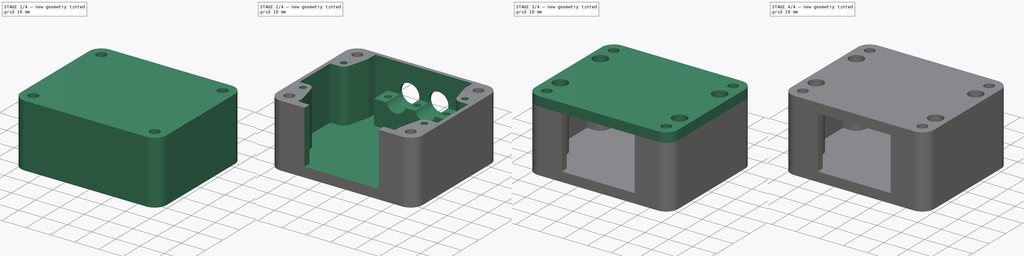
[diagram: build sequence overview — one tinted view per stage of 4, left to right]
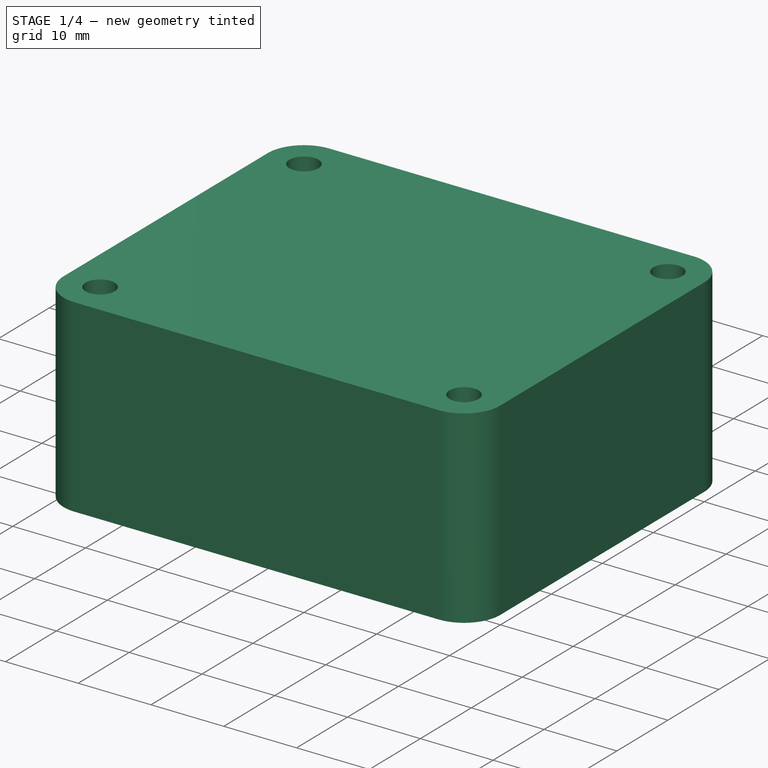
[diagram: stage 1 of 4 — iso view after this stage's code; geometry added in this stage tinted green]
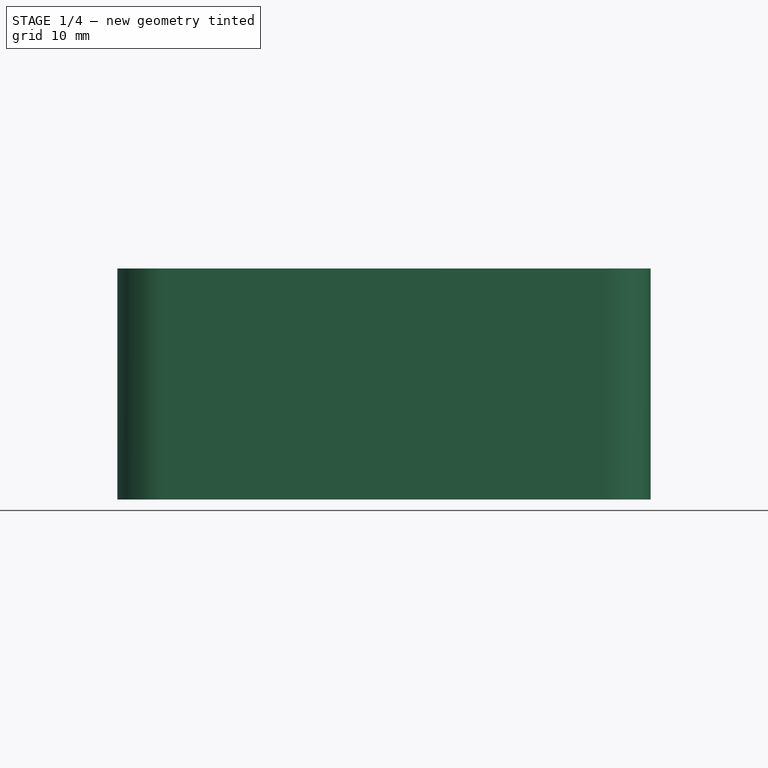
[diagram: stage 1 of 4 — front view after this stage's code; geometry added in this stage tinted green]
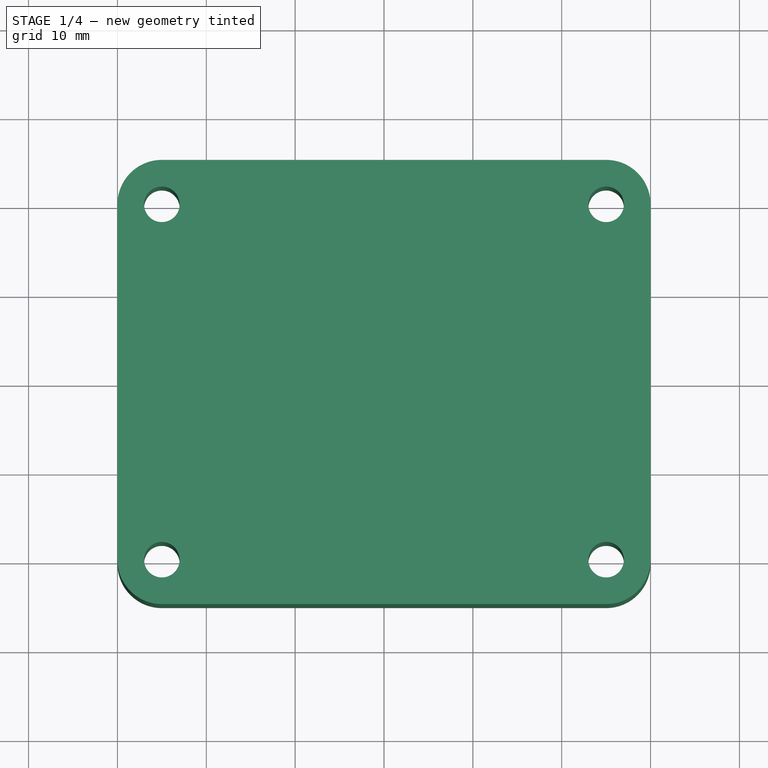
[diagram: stage 1 of 4 — top view after this stage's code; geometry added in this stage tinted green]
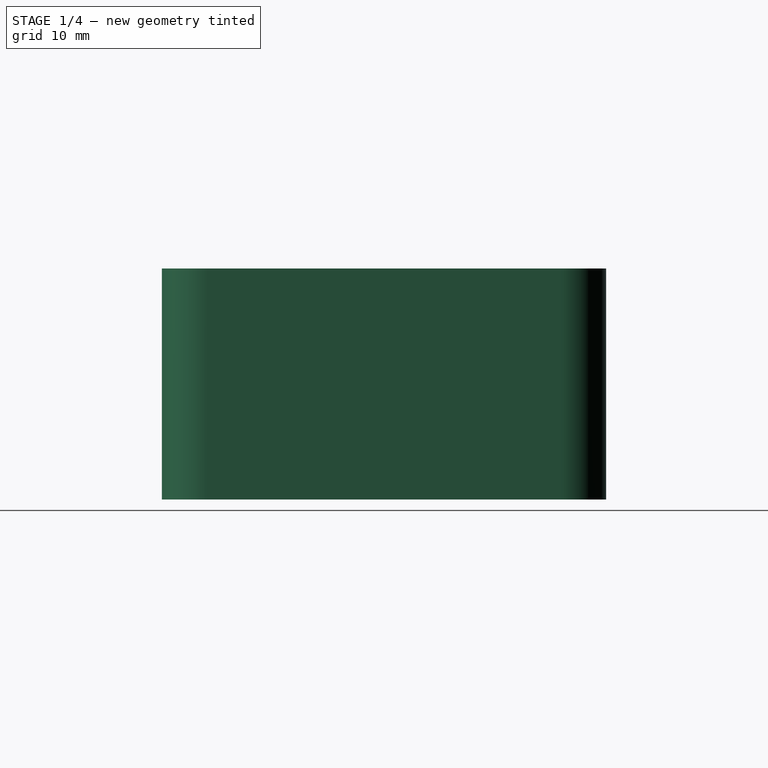
[diagram: stage 1 of 4 — right view after this stage's code; geometry added in this stage tinted green]
FCSTD DOCUMENT  (FreeCAD 0.16R4928 (Git))
Label: SwitchCover
License: All rights reserved
LicenseURL: http://en.wikipedia.org/wiki/All_rights_reserved
objects: Sketcher::SketchObject×9, PartDesign::Pocket×5, PartDesign::Pad×4, App::DocumentObjectGroup×3, PartDesign::Chamfer×1
note: 28 computed .brp shape members not serialized (recipe doc carries the construction recipe); baked Part::Feature solids carry a one-line shape summary decoded from their .brp

FEATURE [Sketcher::SketchObject] Sketch  label="1_BodyBase_Sketch"
  sketch-geometry (8):
    g0: LineSegment StartX=-25 StartY=25 StartZ=0 EndX=25 EndY=25 EndZ=0
    g1: LineSegment StartX=30 StartY=20 StartZ=0 EndX=30 EndY=-20 EndZ=0
    g2: LineSegment StartX=25 StartY=-25 StartZ=0 EndX=-25 EndY=-25 EndZ=0
    g3: LineSegment StartX=-30 StartY=-20 StartZ=0 EndX=-30 EndY=20 EndZ=0
    g4: ArcOfCircle CenterX=-25 CenterY=20 CenterZ=0 NormalX=0 NormalY=0 NormalZ=1 Radius=5 StartAngle=1.5708 EndAngle=3.14159
    g5: ArcOfCircle CenterX=25 CenterY=20 CenterZ=0 NormalX=0 NormalY=0 NormalZ=1 Radius=5 StartAngle=0 EndAngle=1.5708
    g6: ArcOfCircle CenterX=-25 CenterY=-20 CenterZ=0 NormalX=0 NormalY=0 NormalZ=1 Radius=5 StartAngle=3.14159 EndAngle=4.71239
    g7: ArcOfCircle CenterX=25 CenterY=-20 CenterZ=0 NormalX=0 NormalY=0 NormalZ=1 Radius=5 StartAngle=4.71239 EndAngle=6.28319
  constraints (20):
    c: Horizontal(g0)
    c: Horizontal(g2)
    c: Vertical(g1)
    c: Vertical(g3)
    c: Tangent(g0,g4) = 1.5708
    c: Tangent(g3,g4) = 1.5708
    c: Tangent(g0,g5) = 1.5708
    c: Tangent(g1,g5) = 1.5708
    c: Tangent(g3,g6) = 1.5708
    c: Tangent(g2,g6) = 1.5708
    c: Tangent(g2,g7) = 1.5708
    c: Tangent(g1,g7) = 1.5708
    c: Radius(g4) = 5
    c: Equal(g4,g5)
    c: Equal(g4,g7)
    c: Equal(g4,g6)
    c: Symmetric(g2,g2,g-2)
    c: Symmetric(g3,g3,g-1)
    c: DistanceY(g2,g0) = 50
    c: DistanceX(g3,g1) = 60
FEATURE [PartDesign::Pad] Pad  label="1_BodyBase_Pad"
  Length = 26
  Length2 = 100
  Sketch = -> Sketch
  Type = 0
FEATURE [Sketcher::SketchObject] Sketch001  label="2_MountingScrewHoles_Sketch"
  ExternalGeometry = -> [Pad]
  Placement = pos=(0,0,26) rot=(0,0,1;0rad)
  Support = -> Pad [Face10]
  sketch-geometry (4):
    g0: Circle CenterX=-25 CenterY=20 CenterZ=0 NormalX=0 NormalY=0 NormalZ=1 Radius=2
    g1: Circle CenterX=25 CenterY=20 CenterZ=0 NormalX=0 NormalY=0 NormalZ=1 Radius=2
    g2: Circle CenterX=-25 CenterY=-20 CenterZ=0 NormalX=0 NormalY=0 NormalZ=1 Radius=2
    g3: Circle CenterX=25 CenterY=-20 CenterZ=0 NormalX=0 NormalY=0 NormalZ=1 Radius=2
  constraints (8):
    c: Coincident(g0,g-3)
    c: Coincident(g1,g-4)
    c: Coincident(g2,g-5)
    c: Coincident(g3,g-6)
    c: Radius(g0) = 2
    c: Equal(g0,g1)
    c: Equal(g0,g2)
    c: Equal(g0,g3)
FEATURE [PartDesign::Pocket] Pocket  label="2_MountingScrewHoles_Pocket"
  Length = 5
  Sketch = -> Sketch001
  Type = 1
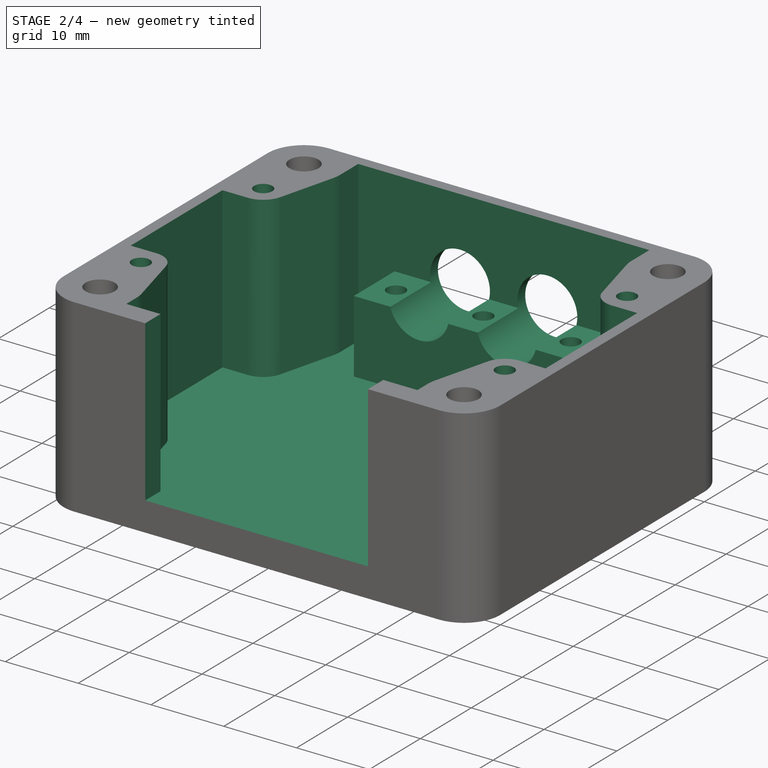
[diagram: stage 2 of 4 — iso view after this stage's code; geometry added in this stage tinted green]
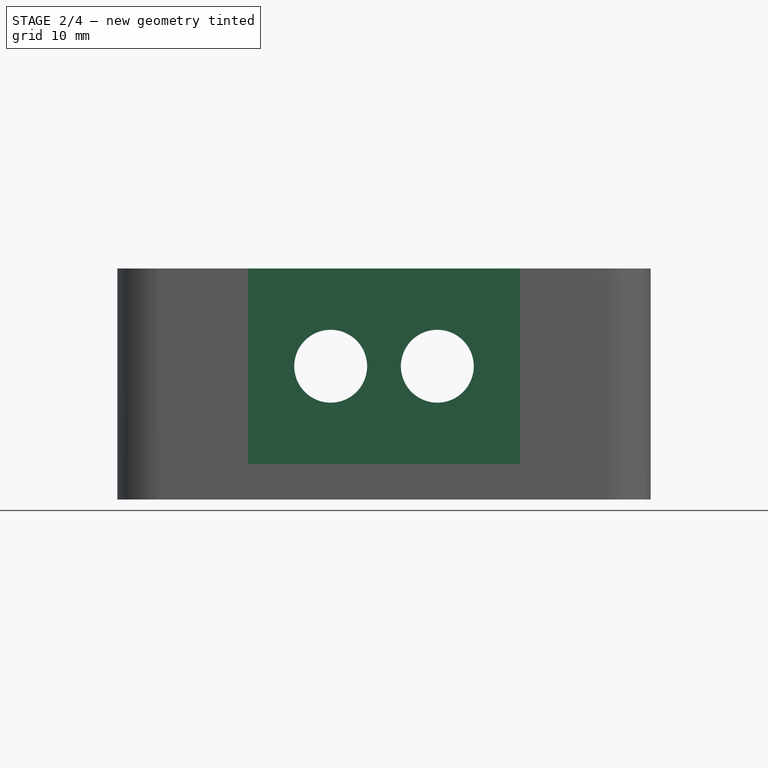
[diagram: stage 2 of 4 — front view after this stage's code; geometry added in this stage tinted green]
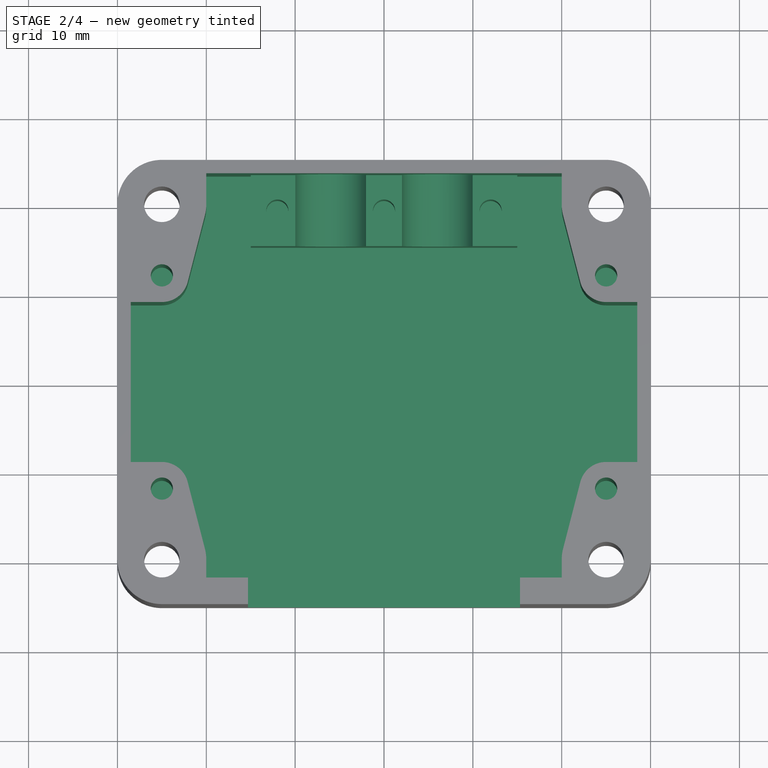
[diagram: stage 2 of 4 — top view after this stage's code; geometry added in this stage tinted green]
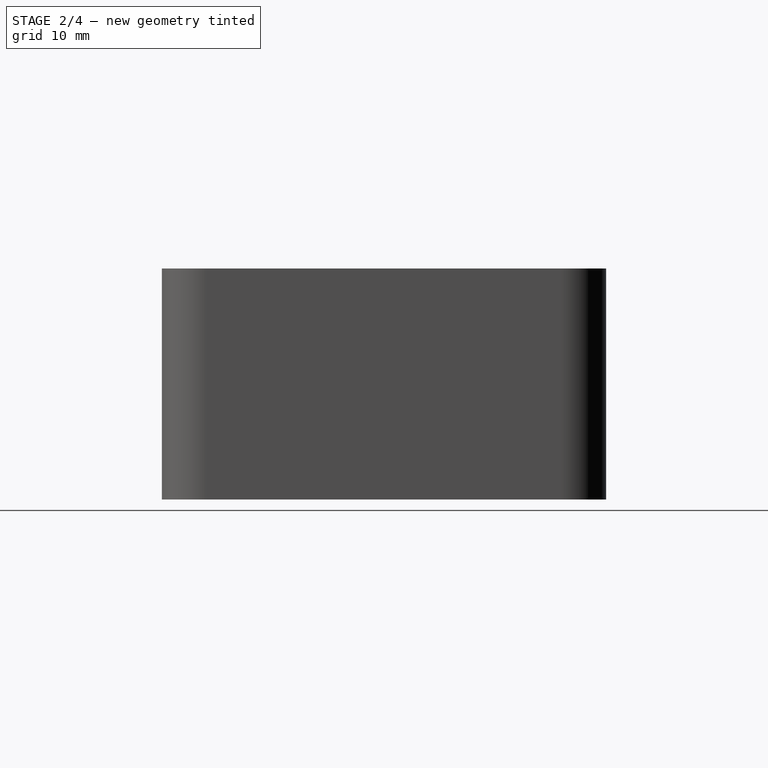
[diagram: stage 2 of 4 — right view after this stage's code; geometry added in this stage tinted green]
FEATURE [Sketcher::SketchObject] Sketch002  label="3_HollowInside_Sketch"
  ExternalGeometry = -> [Pocket]
  Placement = pos=(0,0,26) rot=(0,0,1;0rad)
  Support = -> Pocket [Face5]
  sketch-geometry (32):
    g0: ArcOfCircle CenterX=-25 CenterY=20 CenterZ=0 NormalX=0 NormalY=0 NormalZ=1 Radius=5 StartAngle=6.03051 EndAngle=6.28319
    g1: ArcOfCircle CenterX=25 CenterY=20 CenterZ=0 NormalX=0 NormalY=0 NormalZ=1 Radius=5 StartAngle=3.14159 EndAngle=3.39427
    g2: LineSegment StartX=-28.5 StartY=9 StartZ=0 EndX=-28.5 EndY=-9 EndZ=0
    g3: LineSegment StartX=-28.5 StartY=-9 StartZ=0 EndX=-25 EndY=-9 EndZ=0
    g4: LineSegment StartX=-20 StartY=20 StartZ=0 EndX=-20 EndY=23.5 EndZ=0
    g5: LineSegment StartX=-20 StartY=23.5 StartZ=0 EndX=20 EndY=23.5 EndZ=0
    g6: LineSegment StartX=20 StartY=23.5 StartZ=0 EndX=20 EndY=20 EndZ=0
    g7: LineSegment StartX=-20 StartY=-20 StartZ=0 EndX=-20 EndY=-22 EndZ=0
    g8: LineSegment StartX=-20 StartY=-22 StartZ=0 EndX=-15.3 EndY=-22 EndZ=0
    g9: LineSegment StartX=-15.3 StartY=-22 StartZ=0 EndX=-15.3 EndY=-26 EndZ=0
    g10: LineSegment StartX=-15.3 StartY=-26 StartZ=0 EndX=15.3 EndY=-26 EndZ=0
    g11: LineSegment StartX=15.3 StartY=-26 StartZ=0 EndX=15.3 EndY=-22 EndZ=0
    g12: LineSegment StartX=15.3 StartY=-22 StartZ=0 EndX=20 EndY=-22 EndZ=0
    g13: LineSegment StartX=20 StartY=-22 StartZ=0 EndX=20 EndY=-20 EndZ=0
    g14: LineSegment StartX=28.5 StartY=9 StartZ=0 EndX=28.5 EndY=-9 EndZ=0
    g15: LineSegment StartX=28.5 StartY=-9 StartZ=0 EndX=25 EndY=-9 EndZ=0
    g16: ArcOfCircle CenterX=-25 CenterY=12 CenterZ=0 NormalX=0 NormalY=0 NormalZ=1 Radius=3 StartAngle=4.71239 EndAngle=6.03051
    g17: LineSegment StartX=-28.5 StartY=9 StartZ=0 EndX=-25 EndY=9 EndZ=0
    g18: LineSegment StartX=-22.0953 StartY=11.25 StartZ=0 EndX=-20.1588 EndY=18.75 EndZ=0
    g19: Circle CenterX=-25 CenterY=12 CenterZ=0 NormalX=0 NormalY=0 NormalZ=1 Radius=1.25
    g20: LineSegment StartX=28.5 StartY=9 StartZ=0 EndX=25 EndY=9 EndZ=0
    g21: ArcOfCircle CenterX=25 CenterY=12 CenterZ=0 NormalX=0 NormalY=0 NormalZ=1 Radius=3 StartAngle=3.39427 EndAngle=4.71239
    g22: LineSegment StartX=22.0953 StartY=11.25 StartZ=0 EndX=20.1588 EndY=18.75 EndZ=0
    g23: Circle CenterX=25 CenterY=12 CenterZ=0 NormalX=0 NormalY=0 NormalZ=1 Radius=1.25
    g24: ArcOfCircle CenterX=-25 CenterY=-12 CenterZ=0 NormalX=0 NormalY=0 NormalZ=1 Radius=3 StartAngle=0.252682 EndAngle=1.57079
    g25: ArcOfCircle CenterX=-25 CenterY=-20 CenterZ=0 NormalX=0 NormalY=0 NormalZ=1 Radius=5 StartAngle=6.28319 EndAngle=6.53587
    g26: LineSegment StartX=-20.1588 StartY=-18.75 StartZ=0 EndX=-22.0953 EndY=-11.25 EndZ=0
    g27: Circle CenterX=-25 CenterY=-12 CenterZ=0 NormalX=0 NormalY=0 NormalZ=1 Radius=1.25
    g28: ArcOfCircle CenterX=25 CenterY=-20 CenterZ=0 NormalX=0 NormalY=0 NormalZ=1 Radius=5 StartAngle=2.88892 EndAngle=3.14159
    g29: ArcOfCircle CenterX=25 CenterY=-12 CenterZ=0 NormalX=0 NormalY=0 NormalZ=1 Radius=3 StartAngle=1.5708 EndAngle=2.88892
    g30: LineSegment StartX=20.1588 StartY=-18.75 StartZ=0 EndX=22.0953 EndY=-11.25 EndZ=0
    g31: Circle CenterX=25 CenterY=-12 CenterZ=0 NormalX=0 NormalY=0 NormalZ=1 Radius=1.25
  constraints (93):
    c: Coincident(g0,g-3)
    c: Coincident(g1,g-4)
    c: Coincident(g2,g3)
    c: Horizontal(g3)
    c: Vertical(g4)
    c: Coincident(g4,g5)
    c: Horizontal(g5)
    c: Coincident(g5,g6)
    c: Coincident(g6,g1)
    c: Vertical(g6)
    c: Coincident(g4,g0)
    c: Vertical(g7)
    c: Coincident(g7,g8)
    c: Horizontal(g8)
    c: Coincident(g8,g9)
    c: Vertical(g9)
    c: Coincident(g9,g10)
    c: Horizontal(g10)
    c: Coincident(g10,g11)
    c: Vertical(g11)
    c: Coincident(g11,g12)
    c: Horizontal(g12)
    c: Coincident(g12,g13)
    c: Vertical(g13)
    c: Vertical(g14)
    c: Coincident(g14,g15)
    c: Horizontal(g15)
    c: Radius(g0) = 5
    c: Equal(g0,g1)
    c: DistanceY(g-7,g7) = 3
    c: Symmetric(g8,g11,g-2)
    c: Tangent(g0,g4)
    c: Tangent(g1,g6)
    c: Symmetric(g2,g14,g-2)
    c: DistanceX(g14,g-8) = 1.5
    c: DistanceY(g4,g-9) = 1.5
    c: DistanceY(g10,g-7) = 1
    c: DistanceX(g10) = 30.6
    c: Coincident(g17,g2)
    c: Coincident(g17,g16)
    c: Horizontal(g17)
    c: Tangent(g17,g16)
    c: Coincident(g18,g0)
    c: Radius(g16) = 3
    c: Coincident(g16,g18)
    c: Tangent(g16,g18)
    c: Tangent(g0,g18)
    c: DistanceX(g17) = 3.5
    c: Coincident(g19,g16)
    c: Radius(g19) = 1.25
    c: Coincident(g20,g14)
    c: Horizontal(g20)
    c: Coincident(g21,g20)
    c: Coincident(g22,g21)
    c: Coincident(g22,g1)
    c: Tangent(g22,g1)
    c: Tangent(g22,g21)
    c: Equal(g16,g21)
    c: Tangent(g21,g20)
    c: Coincident(g23,g21)
    c: Equal(g23,g19)
    c: Coincident(g24,g3)
    c: Coincident(g25,g-5)
    c: Coincident(g25,g7)
    c: Coincident(g26,g25)
    c: Coincident(g26,g24)
    c: Equal(g24,g16)
    c: Equal(g25,g0)
    c: Tangent(g3,g24)
    c: Tangent(g24,g26)
    c: Tangent(g26,g25)
    c: Coincident(g27,g24)
    c: Equal(g27,g23)
    c: Tangent(g7,g25)
    c: Equal(g20,g17)
    c: Equal(g3,g20)
    c: DistanceY(g16,g0) = 8
    c: Symmetric(g2,g2,g-1)
    c: Equal(g15,g3)
    c: Coincident(g28,g-6)
    c: Coincident(g28,g13)
    c: Coincident(g29,g15)
    c: Coincident(g30,g28)
    c: Coincident(g30,g29)
    c: Tangent(g28,g30)
    c: Tangent(g28,g13)
    c: Tangent(g30,g29)
    c: Tangent(g29,g15)
    c: Equal(g29,g24)
    c: Equal(g28,g25)
    c: Symmetric(g2,g14,g-2)
    c: Coincident(g31,g29)
    c: Equal(g31,g27)
FEATURE [PartDesign::Pocket] Pocket001  label="3_HollowInside_Pocket"
  Length = 22
  Sketch = -> Sketch002
  Type = 0
FEATURE [Sketcher::SketchObject] Sketch003  label="4_Clamp_Sketch"
  ExternalGeometry = -> [Pocket001]
  Placement = pos=(0,0,4) rot=(0,0,1;0rad)
  Support = -> Pocket001 [Face46]
  sketch-geometry (8):
    g0: LineSegment StartX=-15 StartY=23.5 StartZ=0 EndX=15 EndY=23.5 EndZ=0
    g1: LineSegment StartX=15 StartY=23.5 StartZ=0 EndX=15 EndY=15.5 EndZ=0
    g2: LineSegment StartX=15 StartY=15.5 StartZ=0 EndX=-15 EndY=15.5 EndZ=0
    g3: LineSegment StartX=-15 StartY=15.5 StartZ=0 EndX=-15 EndY=23.5 EndZ=0
    g4: LineSegment [constr] StartX=-15 StartY=19.5 StartZ=0 EndX=15 EndY=19.5 EndZ=0
    g5: Circle CenterX=-12 CenterY=19.5 CenterZ=0 NormalX=0 NormalY=0 NormalZ=1 Radius=1.25
    g6: Circle CenterX=12 CenterY=19.5 CenterZ=0 NormalX=0 NormalY=0 NormalZ=1 Radius=1.25
    g7: Circle CenterX=0 CenterY=19.5 CenterZ=0 NormalX=0 NormalY=0 NormalZ=1 Radius=1.25
  constraints (25):
    c: Coincident(g0,g1)
    c: Coincident(g1,g2)
    c: Coincident(g2,g3)
    c: Coincident(g3,g0)
    c: Horizontal(g0)
    c: Horizontal(g2)
    c: Vertical(g1)
    c: Vertical(g3)
    c: Symmetric(g2,g1,g-2)
    c: PointOnObject(g0,g-3)
    c: DistanceY(g3) = 8
    c: DistanceX(g2) = -30
    c: PointOnObject(g4,g3)
    c: PointOnObject(g4,g1)
    c: Horizontal(g4)
    c: Symmetric(g2,g0,g4)
    c: PointOnObject(g5,g4)
    c: PointOnObject(g6,g4)
    c: Radius(g5) = 1.25
    c: Equal(g5,g6)
    c: Symmetric(g5,g6,g-2)
    c: DistanceX(g2,g5) = 3
    c: PointOnObject(g7,g4)
    c: PointOnObject(g7,g-2)
    c: Equal(g6,g7)
FEATURE [PartDesign::Pad] Pad001  label="4_Clamp_Pad"
  Length = 10
  Length2 = 100
  Sketch = -> Sketch003
  Type = 0
FEATURE [Sketcher::SketchObject] Sketch004  label="5_CableHoles_Sketch"
  Placement = pos=(0,25,0) rot=(0,0.707107,0.707107;3.14159rad)
  Support = -> Pad001 [Face7]
  sketch-geometry (2):
    g0: Circle CenterX=-6 CenterY=15 CenterZ=0 NormalX=0 NormalY=0 NormalZ=1 Radius=4.1
    g1: Circle CenterX=6 CenterY=15 CenterZ=0 NormalX=0 NormalY=0 NormalZ=1 Radius=4.1
  constraints (5):
    c: Symmetric(g0,g1,g-2)
    c: Radius(g0) = 4.1
    c: Equal(g0,g1)
    c: DistanceX(g0,g1) = 12
    c: DistanceY(g-1,g0) = 15
FEATURE [PartDesign::Pocket] Pocket002  label="5_CableHoles_Pocket"
  Length = 11
  Sketch = -> Sketch004
  Type = 0
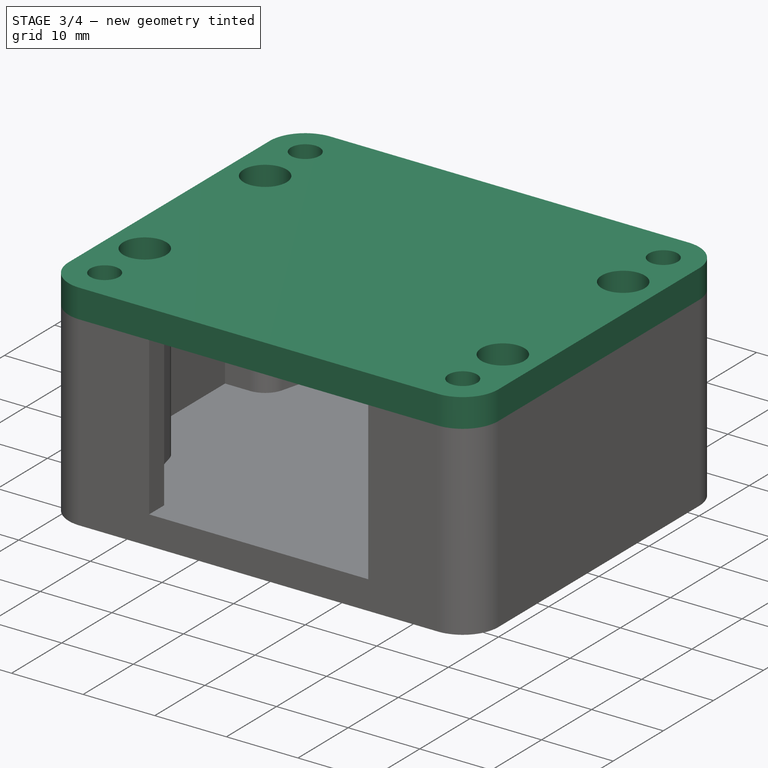
[diagram: stage 3 of 4 — iso view after this stage's code; geometry added in this stage tinted green]
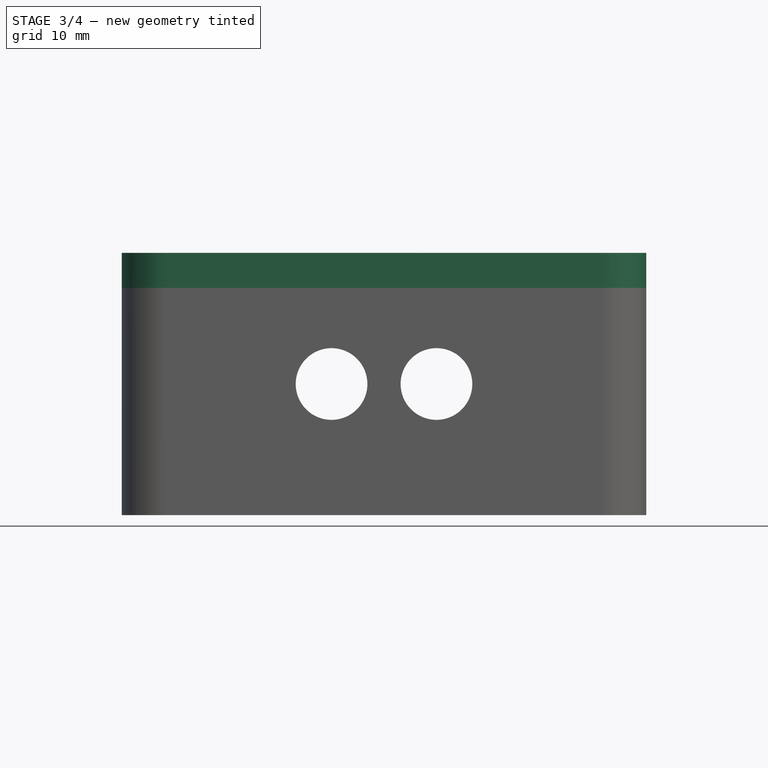
[diagram: stage 3 of 4 — front view after this stage's code; geometry added in this stage tinted green]
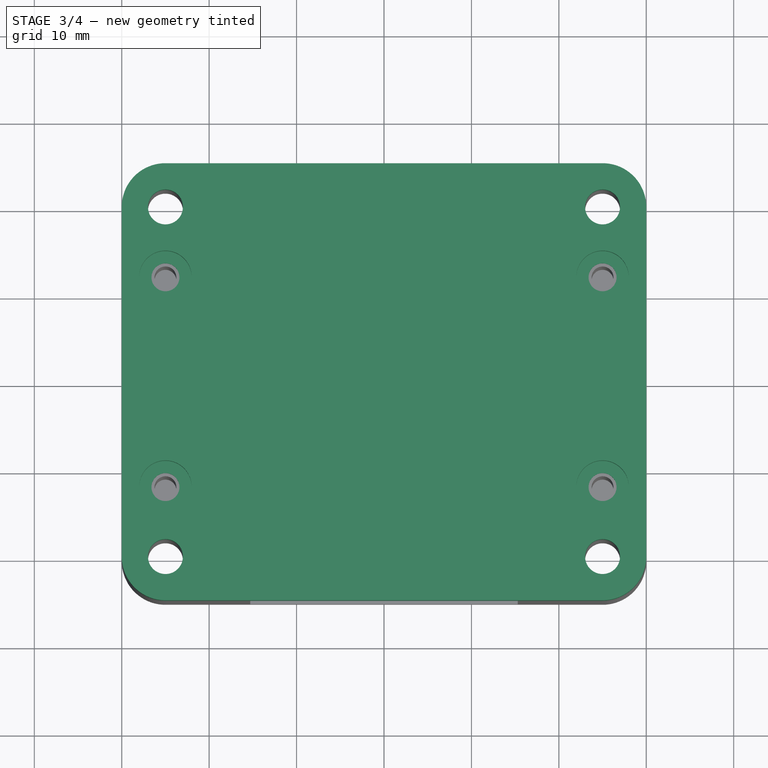
[diagram: stage 3 of 4 — top view after this stage's code; geometry added in this stage tinted green]
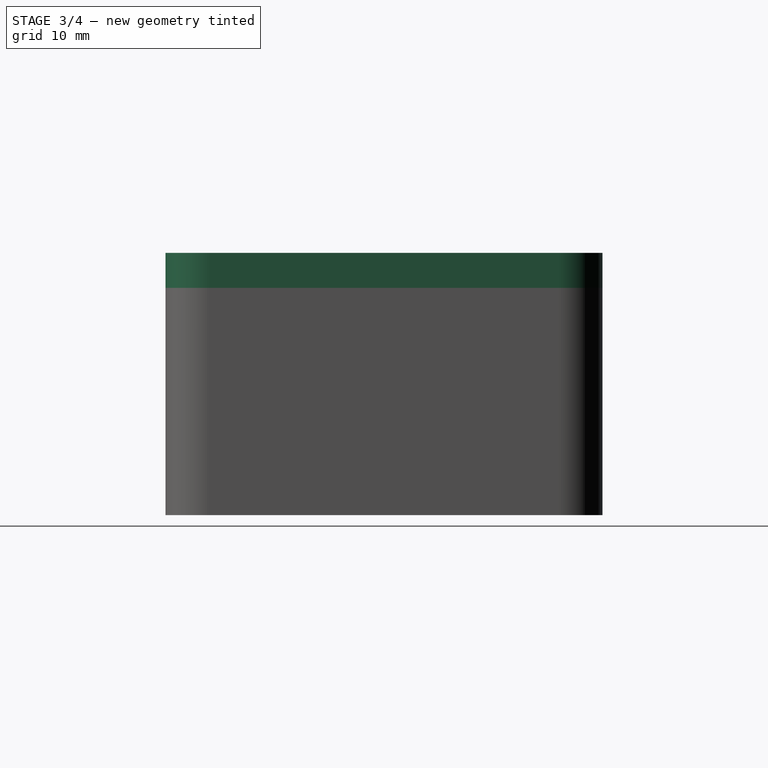
[diagram: stage 3 of 4 — right view after this stage's code; geometry added in this stage tinted green]
FEATURE [App::DocumentObjectGroup] Group002  label="Clamp"
  Group = -> [Pad002,Pocket003]
FEATURE [Sketcher::SketchObject] Sketch007  label="1_LidBase_Sketch"
  Placement = pos=(0,0,26) rot=(0,0,1;0rad)
  sketch-geometry (17):
    g0: LineSegment StartX=-25 StartY=25 StartZ=0 EndX=25 EndY=25 EndZ=0
    g1: LineSegment StartX=30 StartY=20 StartZ=0 EndX=30 EndY=-20 EndZ=0
    g2: LineSegment StartX=25 StartY=-25 StartZ=0 EndX=-25 EndY=-25 EndZ=0
    g3: LineSegment StartX=-30 StartY=-20 StartZ=0 EndX=-30 EndY=20 EndZ=0
    g4: ArcOfCircle CenterX=-25 CenterY=20 CenterZ=0 NormalX=0 NormalY=0 NormalZ=1 Radius=5 StartAngle=1.5708 EndAngle=3.14159
    g5: ArcOfCircle CenterX=25 CenterY=20 CenterZ=0 NormalX=0 NormalY=0 NormalZ=1 Radius=5 StartAngle=0 EndAngle=1.5708
    g6: ArcOfCircle CenterX=25 CenterY=-20 CenterZ=0 NormalX=0 NormalY=0 NormalZ=1 Radius=5 StartAngle=4.71239 EndAngle=6.28319
    g7: ArcOfCircle CenterX=-25 CenterY=-20 CenterZ=0 NormalX=0 NormalY=0 NormalZ=1 Radius=5 StartAngle=3.14159 EndAngle=4.71239
    g8: Circle CenterX=-25 CenterY=20 CenterZ=0 NormalX=0 NormalY=0 NormalZ=1 Radius=2
    g9: Circle CenterX=-25 CenterY=-20 CenterZ=0 NormalX=0 NormalY=0 NormalZ=1 Radius=2
    g10: Circle CenterX=25 CenterY=20 CenterZ=0 NormalX=0 NormalY=0 NormalZ=1 Radius=2
    g11: Circle CenterX=25 CenterY=-20 CenterZ=0 NormalX=0 NormalY=0 NormalZ=1 Radius=2
    g12: Circle CenterX=-25 CenterY=12 CenterZ=0 NormalX=0 NormalY=0 NormalZ=1 Radius=1.6
    g13: Circle CenterX=25 CenterY=12 CenterZ=0 NormalX=0 NormalY=0 NormalZ=1 Radius=1.6
    g14: Circle CenterX=-25 CenterY=-12 CenterZ=0 NormalX=0 NormalY=0 NormalZ=1 Radius=1.6
    g15: Circle CenterX=25 CenterY=-12 CenterZ=0 NormalX=0 NormalY=0 NormalZ=1 Radius=1.6
    g16: LineSegment [constr] StartX=-25 StartY=20 StartZ=0 EndX=-25 EndY=-20 EndZ=0
  constraints (40):
    c: Horizontal(g0)
    c: Horizontal(g2)
    c: Vertical(g1)
    c: Vertical(g3)
    c: Tangent(g0,g4) = 1.5708
    c: Tangent(g3,g4) = 1.5708
    c: Tangent(g0,g5) = 1.5708
    c: Tangent(g1,g5) = 1.5708
    c: Tangent(g2,g6) = 1.5708
    c: Tangent(g1,g6) = 1.5708
    c: Tangent(g2,g7) = 1.5708
    c: Tangent(g3,g7) = 1.5708
    c: Radius(g4) = 5
    c: Equal(g4,g5)
    c: Equal(g4,g7)
    c: Equal(g4,g6)
    c: DistanceX(g3,g1) = 60
    c: DistanceY(g2,g0) = 50
    c: Symmetric(g1,g1,g-1)
    c: Symmetric(g2,g2,g-2)
    c: Coincident(g8,g4)
    c: Coincident(g10,g5)
    c: Coincident(g11,g6)
    c: Coincident(g7,g9)
    c: Radius(g8) = 2
    c: Equal(g8,g10)
    c: Equal(g8,g9)
    c: Equal(g8,g11)
    c: Coincident(g16,g4)
    c: Coincident(g16,g7)
    c: PointOnObject(g12,g16)
    c: PointOnObject(g14,g16)
    c: Symmetric(g14,g12,g-1)
    c: DistanceY(g12,g4) = 8
    c: Symmetric(g12,g13,g-2)
    c: Symmetric(g14,g15,g-2)
    c: Radius(g12) = 1.6
    c: Equal(g12,g13)
    c: Equal(g12,g14)
    c: Equal(g12,g15)
FEATURE [PartDesign::Pad] Pad003  label="1_LidBase_Pad"
  Length = 4
  Length2 = 100
  Placement = pos=(0,0,26) rot=(0,0,1;0rad)
  Sketch = -> Sketch007
  Type = 0
FEATURE [Sketcher::SketchObject] Sketch008  label="2_ScrewCounterboreHole_Sketch"
  ExternalGeometry = -> [Pad003]
  Placement = pos=(0,0,30) rot=(0,0,1;0rad)
  Support = -> Pad003 [Face18]
  sketch-geometry (4):
    g0: Circle CenterX=-25 CenterY=12 CenterZ=0 NormalX=0 NormalY=0 NormalZ=1 Radius=3
    g1: Circle CenterX=-25 CenterY=-12 CenterZ=0 NormalX=0 NormalY=0 NormalZ=1 Radius=3
    g2: Circle CenterX=25 CenterY=12 CenterZ=0 NormalX=0 NormalY=0 NormalZ=1 Radius=3
    g3: Circle CenterX=25 CenterY=-12 CenterZ=0 NormalX=0 NormalY=0 NormalZ=1 Radius=3
  constraints (8):
    c: Coincident(g0,g-3)
    c: Coincident(g1,g-5)
    c: Coincident(g2,g-4)
    c: Coincident(g3,g-6)
    c: Radius(g0) = 3
    c: Equal(g0,g2)
    c: Equal(g0,g1)
    c: Equal(g0,g3)
FEATURE [PartDesign::Pocket] Pocket004  label="2_ScrewCounterboreHole_Pocket"
  Length = 3
  Placement = pos=(0,0,26) rot=(0,0,1;0rad)
  Sketch = -> Sketch008
  Type = 0
FEATURE [App::DocumentObjectGroup] Group003  label="Lid"
  Group = -> [Pad003,Pocket004]
FEATURE [PartDesign::Chamfer] Chamfer  label="6_MountingScrewHead_Chamfer"
  Base = -> Pocket002 [Edge17,Edge16,Edge19,Edge18]
  Size = 2
FEATURE [App::DocumentObjectGroup] Group  label="Body"
  Group = -> [Pad,Pocket,Pocket001,Pad001,Pocket002,Chamfer]
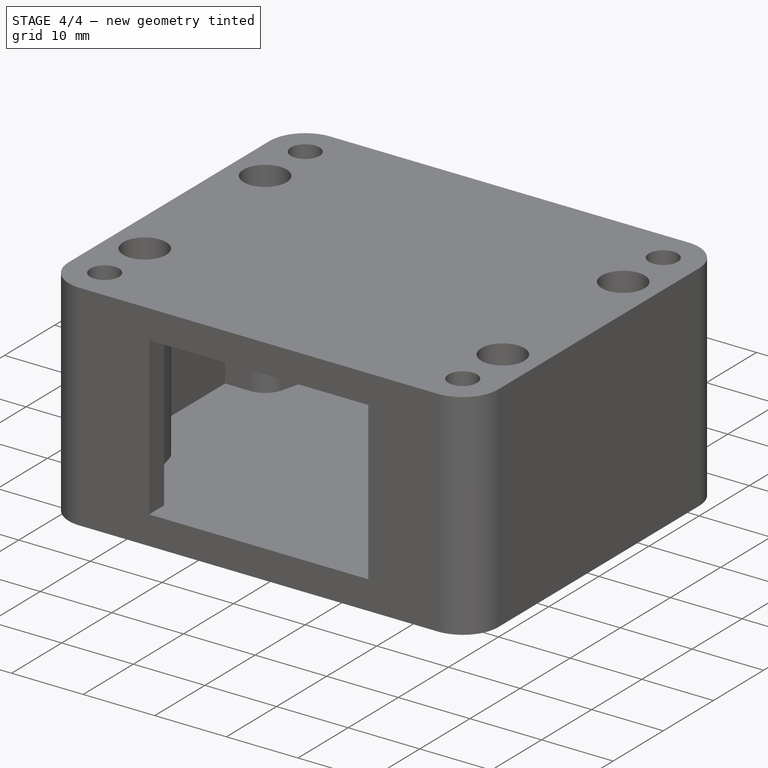
[diagram: stage 4 of 4 — iso view after this stage's code; geometry added in this stage tinted green]
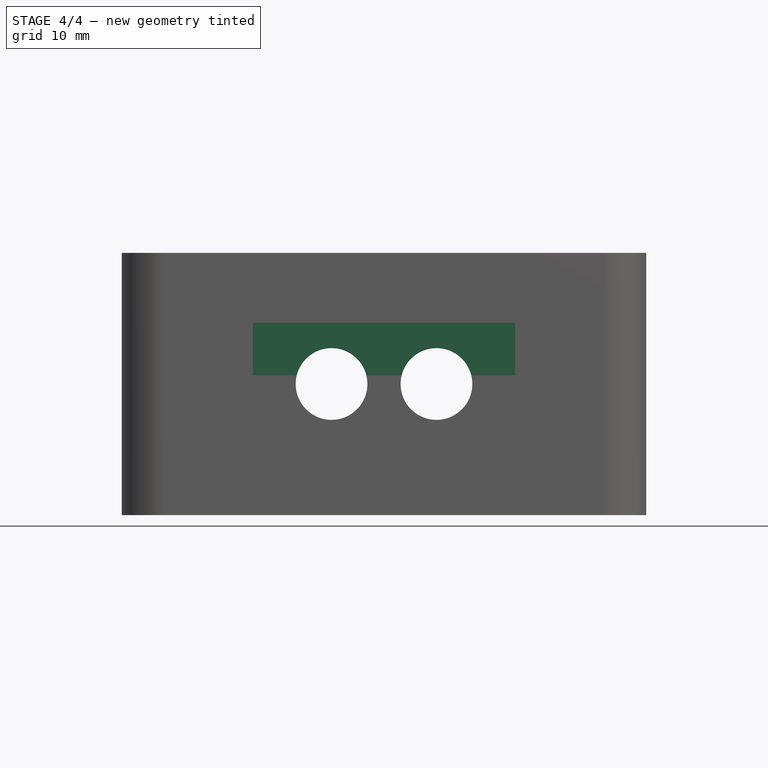
[diagram: stage 4 of 4 — front view after this stage's code; geometry added in this stage tinted green]
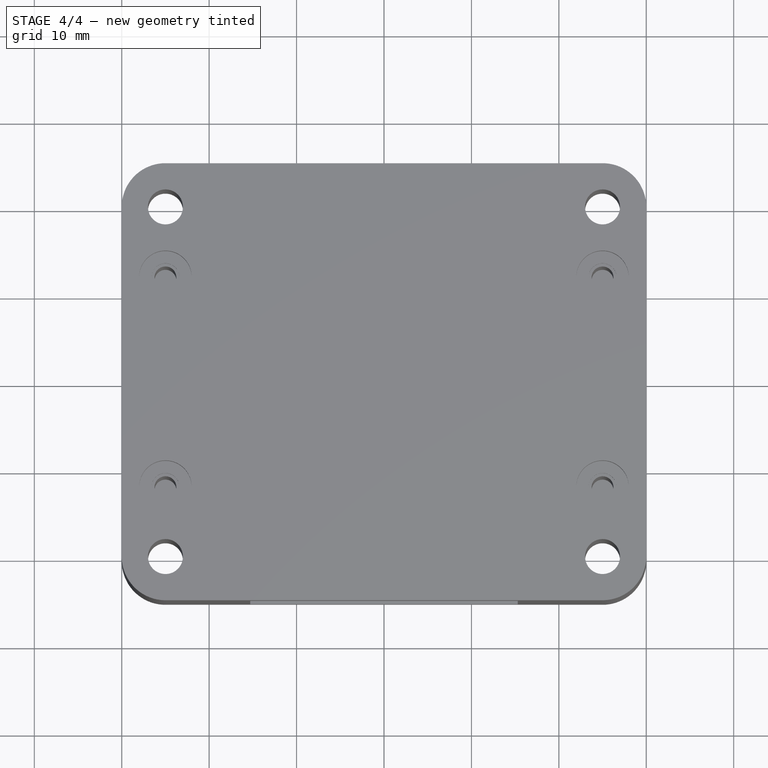
[diagram: stage 4 of 4 — top view after this stage's code; geometry added in this stage tinted green]
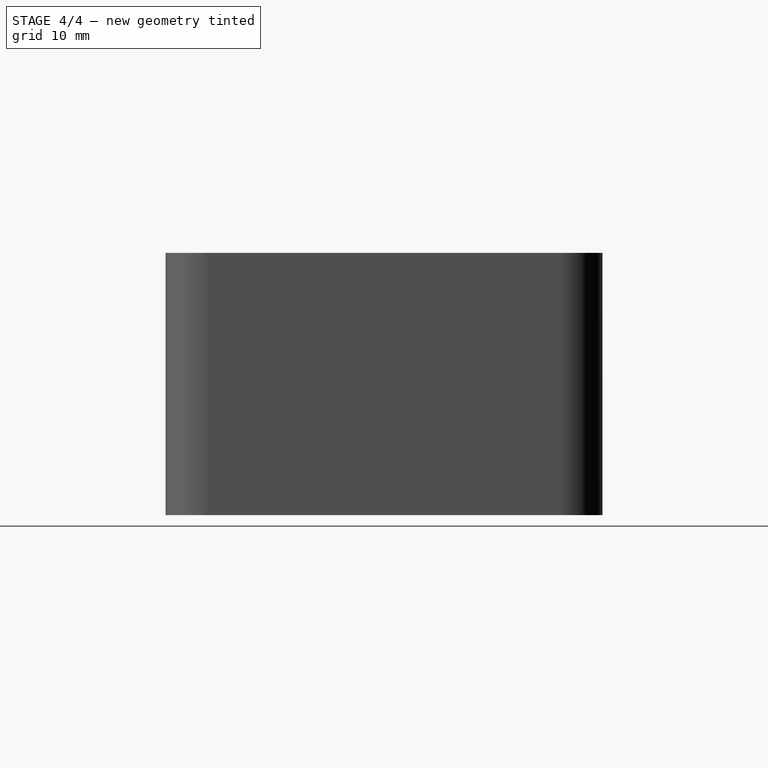
[diagram: stage 4 of 4 — right view after this stage's code; geometry added in this stage tinted green]
FEATURE [Sketcher::SketchObject] Sketch005  label="1_ClampBase_Sketch"
  Placement = pos=(0,23.5,0) rot=(-1,0,0;4.71239rad)
  sketch-geometry (9):
    g0: ArcOfCircle CenterX=-6 CenterY=15 CenterZ=0 NormalX=0 NormalY=0 NormalZ=1 Radius=4.1 StartAngle=0.246388 EndAngle=2.8952
    g1: ArcOfCircle CenterX=6 CenterY=15 CenterZ=0 NormalX=0 NormalY=0 NormalZ=1 Radius=4.1 StartAngle=0.246388 EndAngle=2.8952
    g2: LineSegment StartX=-2.02382 StartY=16 StartZ=0 EndX=2.02382 EndY=16 EndZ=0
    g3: LineSegment StartX=-9.97618 StartY=16 StartZ=0 EndX=-15 EndY=16 EndZ=0
    g4: LineSegment StartX=-15 StartY=16 StartZ=0 EndX=-15 EndY=22 EndZ=0
    g5: LineSegment StartX=-15 StartY=22 StartZ=0 EndX=15 EndY=22 EndZ=0
    g6: LineSegment StartX=15 StartY=22 StartZ=0 EndX=15 EndY=16 EndZ=0
    g7: LineSegment StartX=15 StartY=16 StartZ=0 EndX=9.97618 EndY=16 EndZ=0
    g8: LineSegment [constr] StartX=-6 StartY=15 StartZ=0 EndX=6 EndY=15 EndZ=0
  constraints (26):
    c: Radius(g0) = 4.1
    c: Equal(g0,g1)
    c: Coincident(g2,g0)
    c: Coincident(g2,g1)
    c: Coincident(g3,g4)
    c: Coincident(g4,g5)
    c: Horizontal(g5)
    c: Coincident(g5,g6)
    c: Vertical(g6)
    c: Coincident(g6,g7)
    c: Coincident(g7,g1)
    c: Horizontal(g7)
    c: Vertical(g4)
    c: Horizontal(g3)
    c: Coincident(g3,g0)
    c: Tangent(g3,g2)
    c: Tangent(g2,g7)
    c: DistanceX(g0,g1) = 12
    c: Symmetric(g0,g1,g-2)
    c: DistanceX(g5) = 30
    c: Symmetric(g4,g5,g-2)
    c: DistanceY(g-1,g0) = 15
    c: Coincident(g8,g0)
    c: Coincident(g8,g1)
    c: DistanceY(g0,g3) = 1
    c: DistanceY(g1,g5) = 7
FEATURE [PartDesign::Pad] Pad002  label="1_ClampBase_Pad"
  Length = 8
  Length2 = 100
  Placement = pos=(0,23.5,0) rot=(-1,0,0;4.71239rad)
  Sketch = -> Sketch005
  Type = 0
FEATURE [Sketcher::SketchObject] Sketch006  label="2_ScrewHoles_Sketch"
  ExternalGeometry = -> [Pad002]
  Placement = pos=(0,23.5,22) rot=(0,0,1;3.14159rad)
  Support = -> Pad002 [Face4]
  sketch-geometry (4):
    g0: LineSegment [constr] StartX=-15 StartY=4 StartZ=0 EndX=15 EndY=4 EndZ=0
    g1: Circle CenterX=-12 CenterY=4 CenterZ=0 NormalX=0 NormalY=0 NormalZ=1 Radius=1.6
    g2: Circle CenterX=0 CenterY=4 CenterZ=0 NormalX=0 NormalY=0 NormalZ=1 Radius=1.6
    g3: Circle CenterX=12 CenterY=4 CenterZ=0 NormalX=0 NormalY=0 NormalZ=1 Radius=1.6
  constraints (12):
    c: Horizontal(g0)
    c: Symmetric(g-3,g-3,g0)
    c: Symmetric(g-4,g-4,g0)
    c: PointOnObject(g1,g0)
    c: PointOnObject(g2,g0)
    c: PointOnObject(g3,g0)
    c: PointOnObject(g2,g-2)
    c: Symmetric(g1,g3,g-2)
    c: DistanceX(g1,g-3) = -3
    c: Radius(g1) = 1.6
    c: Equal(g1,g2)
    c: Equal(g1,g3)
FEATURE [PartDesign::Pocket] Pocket003  label="2_ScrewHoles_Pocket"
  Length = 5
  Placement = pos=(0,23.5,0) rot=(-1,0,0;4.71239rad)
  Sketch = -> Sketch006
  Type = 1
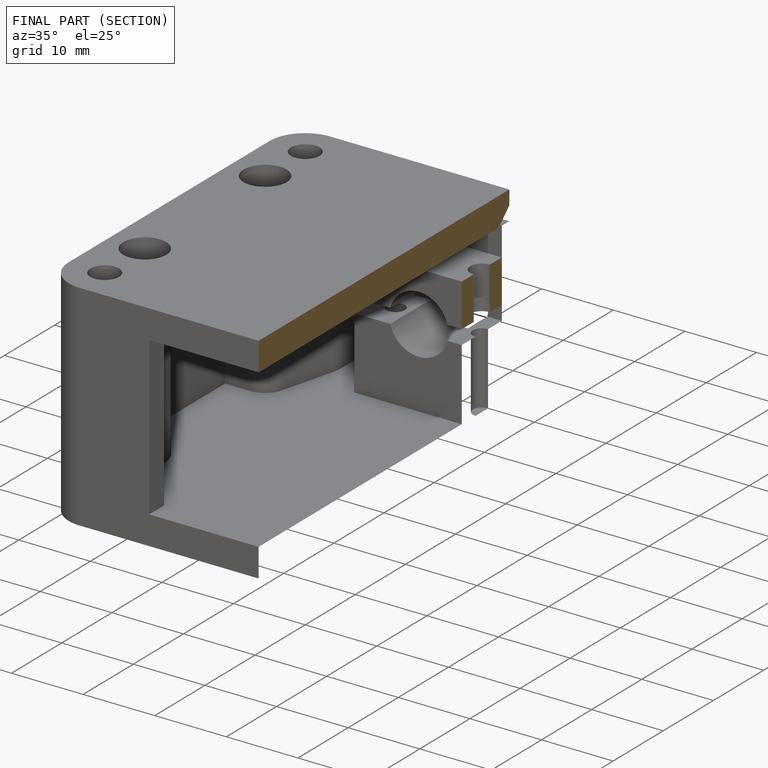
[diagram: finished part — half-section view (interior)]
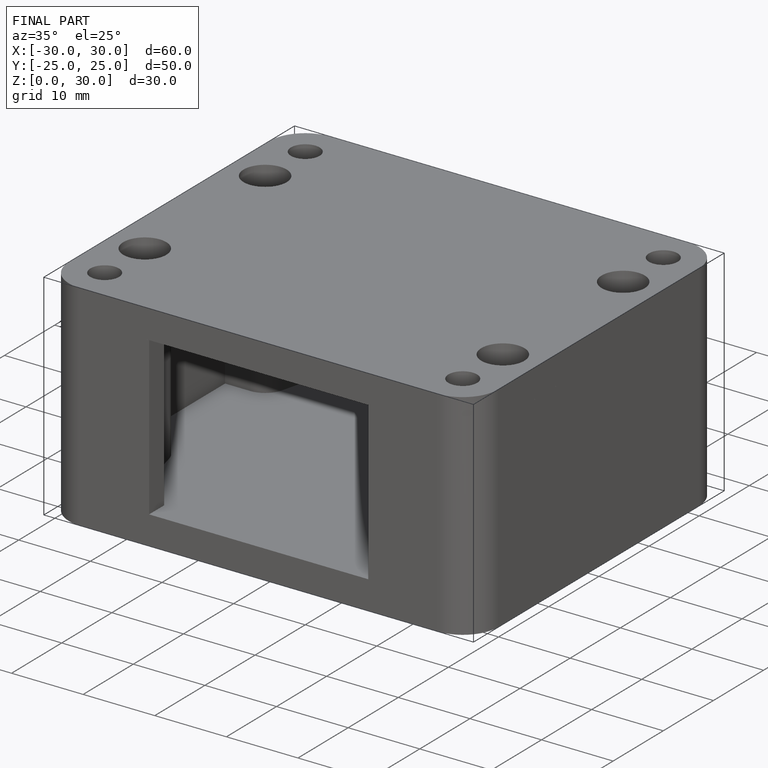
[diagram: finished part — iso view with bounding-box wireframe]
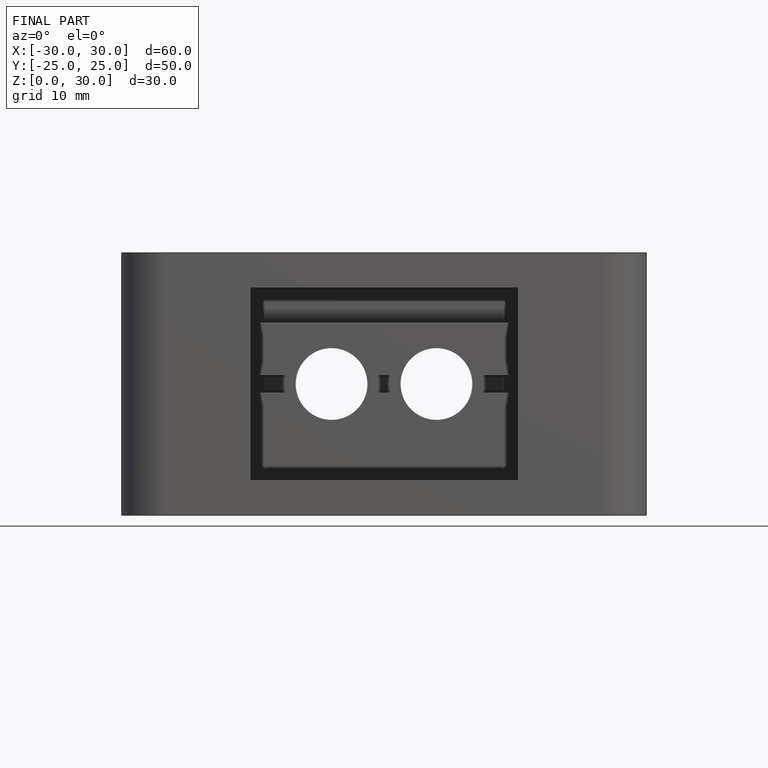
[diagram: finished part — front view with bounding-box wireframe]
